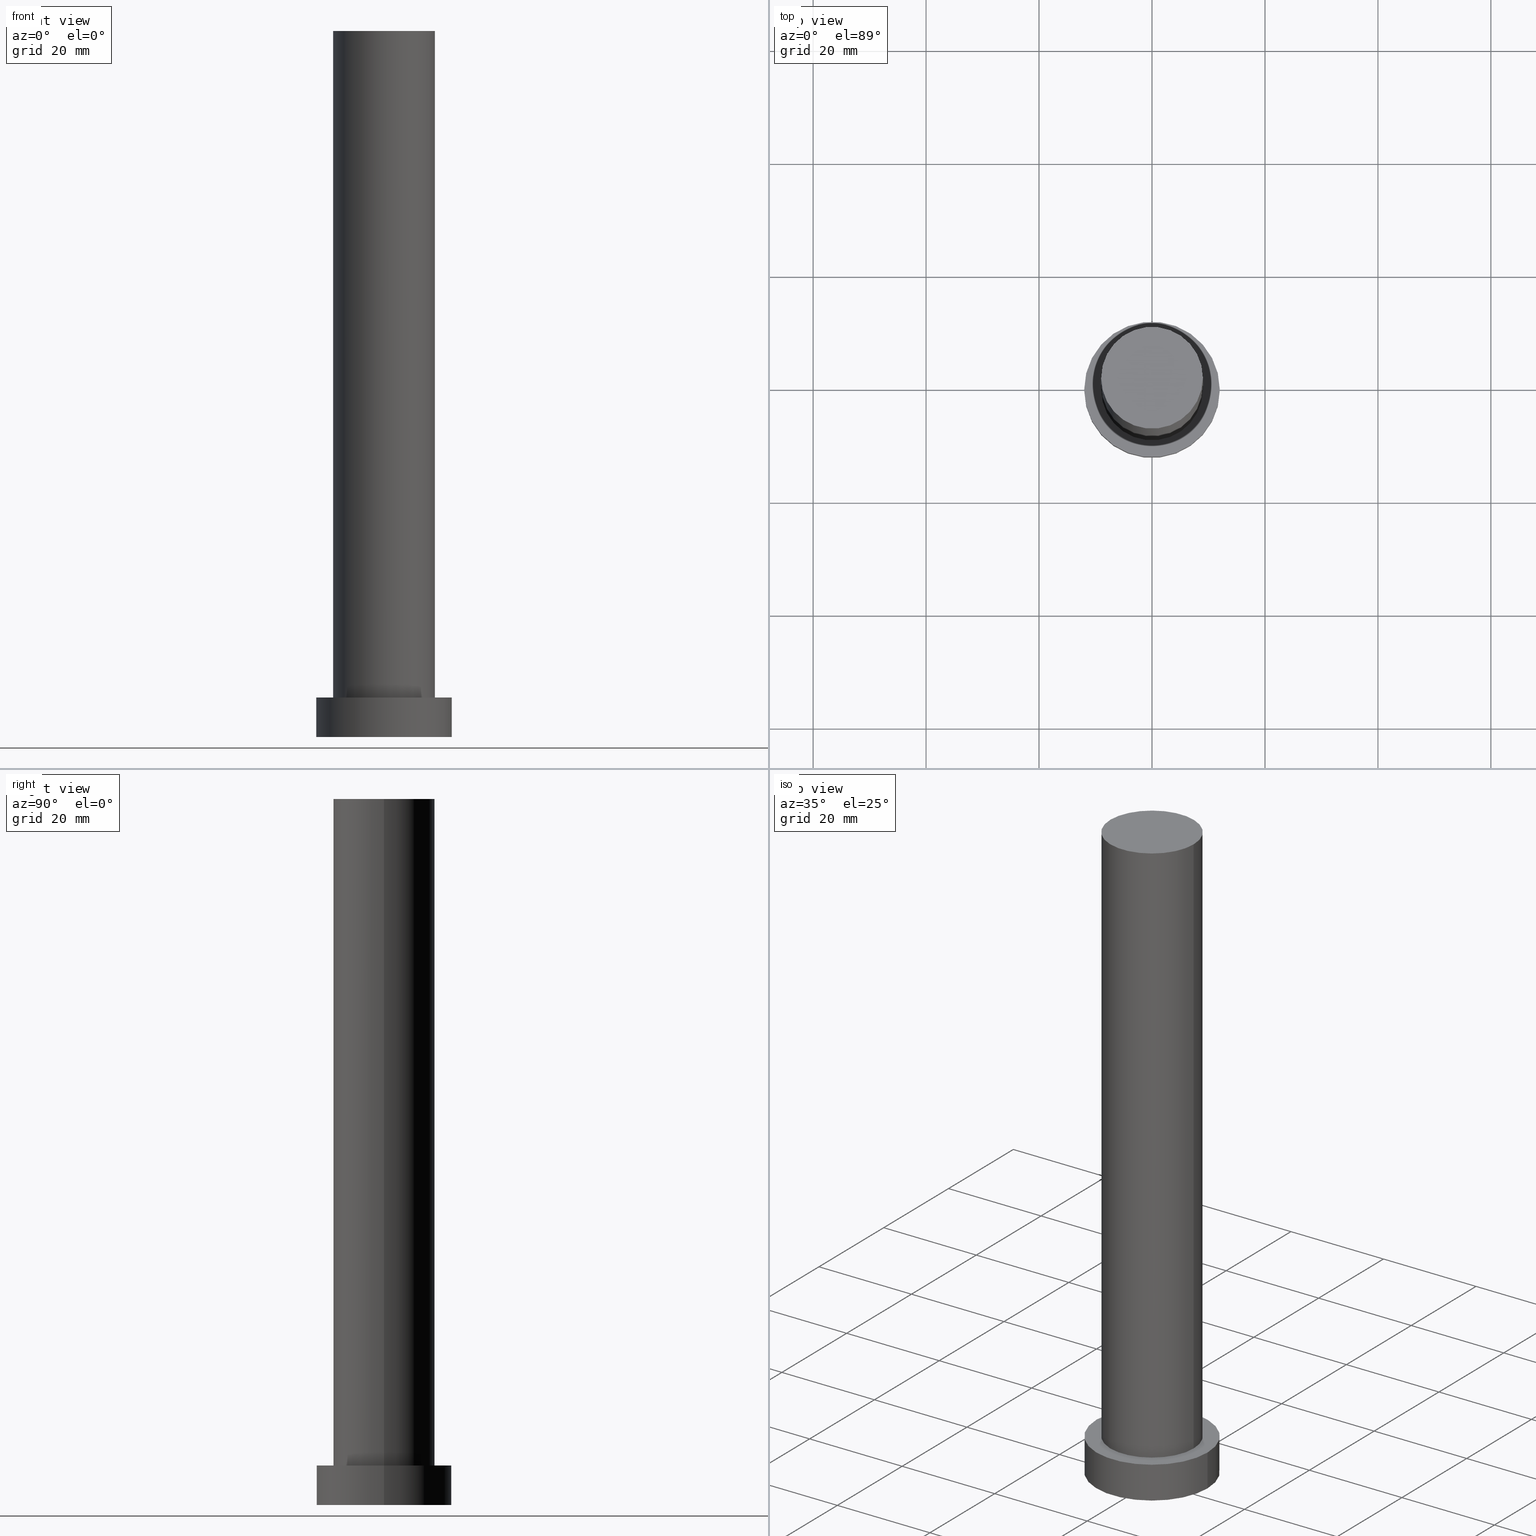
[diagram: canonical four-view strip — front | top / right | iso, engineering-drawing reading convention]
A machine part, canonical four-view strip (front | top / right | iso — engineering-drawing reading convention). The complete STEP part file that produces these views, byte-faithful:
ISO-10303-21;
HEADER;
FILE_DESCRIPTION (( 'STEP AP203' ),
    '1' );
FILE_NAME ('dd1f.STEP',
    '2023-02-13T09:19:42',
    ( '' ),
    ( '' ),
    'SwSTEP 2.0',
    'SolidWorks 2019',
    '' );
FILE_SCHEMA (( 'CONFIG_CONTROL_DESIGN' ));
ENDSEC;

DATA;
#1 = CARTESIAN_POINT ( 'NONE',  ( 0.000000000000000000, 0.000000000000000000, 125.0000000000000000 ) ) ;
#2 = EDGE_LOOP ( 'NONE', ( #228, #59 ) ) ;
#3 = CARTESIAN_POINT ( 'NONE',  ( 12.00000000000000178, 1.469576158976824144E-15, 7.000000000000000000 ) ) ;
#4 = DATE_AND_TIME ( #150, #138 ) ;
#5 = DIRECTION ( 'NONE',  ( 0.000000000000000000, 0.000000000000000000, 1.000000000000000000 ) ) ;
#6 = AXIS2_PLACEMENT_3D ( 'NONE', #202, #67, #137 ) ;
#7 = ADVANCED_FACE ( 'NONE', ( #255 ), #152, .T. ) ;
#8 = PERSON_AND_ORGANIZATION_ROLE ( 'creator' ) ;
#9 = EDGE_LOOP ( 'NONE', ( #215, #230, #41, #127 ) ) ;
#10 = CARTESIAN_POINT ( 'NONE',  ( 0.000000000000000000, 0.000000000000000000, 0.000000000000000000 ) ) ;
#11 = AXIS2_PLACEMENT_3D ( 'NONE', #115, #154, #50 ) ;
#12 = FACE_OUTER_BOUND ( 'NONE', #253, .T. ) ;
#13 = EDGE_CURVE ( 'NONE', #191, #162, #146, .T. ) ;
#14 = AXIS2_PLACEMENT_3D ( 'NONE', #224, #23, #70 ) ;
#15 = CC_DESIGN_APPROVAL ( #51, ( #143 ) ) ;
#16 = CLOSED_SHELL ( 'NONE', ( #106, #7, #155, #19, #62, #129, #189 ) ) ;
#17 = AXIS2_PLACEMENT_3D ( 'NONE', #227, #134, #183 ) ;
#18 = VERTEX_POINT ( 'NONE', #226 ) ;
#19 = ADVANCED_FACE ( 'NONE', ( #206, #111 ), #86, .T. ) ;
#20 = AXIS2_PLACEMENT_3D ( 'NONE', #88, #5, #172 ) ;
#21 = DIRECTION ( 'NONE',  ( 1.000000000000000000, 0.000000000000000000, 0.000000000000000000 ) ) ;
#22 = CARTESIAN_POINT ( 'NONE',  ( 9.000000000000000000, 1.102182119232617714E-15, 7.000000000000000000 ) ) ;
#23 = DIRECTION ( 'NONE',  ( 0.000000000000000000, 0.000000000000000000, 1.000000000000000000 ) ) ;
#24 = EDGE_CURVE ( 'NONE', #240, #232, #178, .T. ) ;
#25 = CARTESIAN_POINT ( 'NONE',  ( -9.000000000000000000, 0.000000000000000000, 125.0000000000000000 ) ) ;
#26 = PRODUCT_DEFINITION_SHAPE ( 'NONE', 'NONE',  #234 ) ;
#27 = CARTESIAN_POINT ( 'NONE',  ( 0.000000000000000000, 0.000000000000000000, 125.0000000000000000 ) ) ;
#28 = LINE ( 'NONE', #47, #36 ) ;
#29 = PERSON_AND_ORGANIZATION ( #176, #108 ) ;
#30 = DIRECTION ( 'NONE',  ( 1.000000000000000000, 0.000000000000000000, 0.000000000000000000 ) ) ;
#31 = DIRECTION ( 'NONE',  ( 1.000000000000000000, 0.000000000000000000, 0.000000000000000000 ) ) ;
#32 = EDGE_CURVE ( 'NONE', #39, #196, #103, .T. ) ;
#33 = CYLINDRICAL_SURFACE ( 'NONE', #185, 9.000000000000000000 ) ;
#34 =( NAMED_UNIT ( * ) PLANE_ANGLE_UNIT ( ) SI_UNIT ( $, .RADIAN. ) );
#35 = AXIS2_PLACEMENT_3D ( 'NONE', #208, #139, #30 ) ;
#36 = VECTOR ( 'NONE', #53, 1000.000000000000000 ) ;
#37 = ORIENTED_EDGE ( 'NONE', *, *, #173, .T. ) ;
#38 = ORIENTED_EDGE ( 'NONE', *, *, #72, .T. ) ;
#39 = VERTEX_POINT ( 'NONE', #187 ) ;
#40 = APPLICATION_CONTEXT ( 'configuration controlled 3d designs of mechanical parts and assemblies' ) ;
#41 = ORIENTED_EDGE ( 'NONE', *, *, #32, .T. ) ;
#42 = CC_DESIGN_APPROVAL ( #149, ( #130 ) ) ;
#43 = PERSON_AND_ORGANIZATION ( #176, #108 ) ;
#44 = APPROVAL_STATUS ( 'not_yet_approved' ) ;
#45 = LOCAL_TIME ( 10, 19, 42.00000000000000000, #49 ) ;
#46 = DIRECTION ( 'NONE',  ( 1.000000000000000000, 0.000000000000000000, 0.000000000000000000 ) ) ;
#47 = CARTESIAN_POINT ( 'NONE',  ( -12.00000000000000178, 0.000000000000000000, 7.000000000000000000 ) ) ;
#48 = CIRCLE ( 'NONE', #68, 9.000000000000000000 ) ;
#49 = COORDINATED_UNIVERSAL_TIME_OFFSET ( 1, 0, .AHEAD. ) ;
#50 = DIRECTION ( 'NONE',  ( 1.000000000000000000, 0.000000000000000000, 0.000000000000000000 ) ) ;
#51 = APPROVAL ( #114, 'NEUR�EN�' ) ;
#52 = DIRECTION ( 'NONE',  ( -0.000000000000000000, -0.000000000000000000, -1.000000000000000000 ) ) ;
#53 = DIRECTION ( 'NONE',  ( -0.000000000000000000, -0.000000000000000000, -1.000000000000000000 ) ) ;
#54 = PLANE ( 'NONE',  #170 ) ;
#55 = CALENDAR_DATE ( 2023, 13, 2 ) ;
#56 = LINE ( 'NONE', #221, #61 ) ;
#57 = CARTESIAN_POINT ( 'NONE',  ( -12.00000000000000178, 0.000000000000000000, 0.000000000000000000 ) ) ;
#58 = EDGE_CURVE ( 'NONE', #18, #191, #56, .T. ) ;
#59 = ORIENTED_EDGE ( 'NONE', *, *, #32, .F. ) ;
#60 = ORIENTED_EDGE ( 'NONE', *, *, #198, .T. ) ;
#61 = VECTOR ( 'NONE', #52, 1000.000000000000000 ) ;
#62 = ADVANCED_FACE ( 'NONE', ( #133 ), #54, .F. ) ;
#63 =( NAMED_UNIT ( * ) SI_UNIT ( $, .STERADIAN. ) SOLID_ANGLE_UNIT ( ) );
#64 = EDGE_CURVE ( 'NONE', #196, #39, #97, .T. ) ;
#65 = DATE_AND_TIME ( #237, #214 ) ;
#66 = ORIENTED_EDGE ( 'NONE', *, *, #198, .F. ) ;
#67 = DIRECTION ( 'NONE',  ( -0.000000000000000000, -0.000000000000000000, -1.000000000000000000 ) ) ;
#68 = AXIS2_PLACEMENT_3D ( 'NONE', #1, #169, #31 ) ;
#69 = SECURITY_CLASSIFICATION_LEVEL ( 'unclassified' ) ;
#70 = DIRECTION ( 'NONE',  ( 1.000000000000000000, 0.000000000000000000, 0.000000000000000000 ) ) ;
#71 = CARTESIAN_POINT ( 'NONE',  ( -9.000000000000000000, 0.000000000000000000, 7.000000000000000000 ) ) ;
#72 = EDGE_CURVE ( 'NONE', #242, #18, #197, .T. ) ;
#73 = DATE_TIME_ROLE ( 'creation_date' ) ;
#74 = CARTESIAN_POINT ( 'NONE',  ( 0.000000000000000000, 0.000000000000000000, 7.000000000000000000 ) ) ;
#75 = CARTESIAN_POINT ( 'NONE',  ( 0.000000000000000000, 0.000000000000000000, 7.000000000000000000 ) ) ;
#76 = CARTESIAN_POINT ( 'NONE',  ( 12.00000000000000178, 1.469576158976824144E-15, 7.000000000000000000 ) ) ;
#77 = ORIENTED_EDGE ( 'NONE', *, *, #109, .F. ) ;
#78 = APPROVAL ( #44, 'NEUR�EN�' ) ;
#79 = EDGE_CURVE ( 'NONE', #240, #39, #179, .T. ) ;
#80 = EDGE_LOOP ( 'NONE', ( #245, #165 ) ) ;
#81 = APPROVAL_PERSON_ORGANIZATION ( #84, #149, #87 ) ;
#82 = DIRECTION ( 'NONE',  ( 0.000000000000000000, 0.000000000000000000, 1.000000000000000000 ) ) ;
#83 = PERSON_AND_ORGANIZATION_ROLE ( 'design_owner' ) ;
#84 = PERSON_AND_ORGANIZATION ( #176, #108 ) ;
#85 = ORIENTED_EDGE ( 'NONE', *, *, #247, .T. ) ;
#86 = PLANE ( 'NONE',  #20 ) ;
#87 = APPROVAL_ROLE ( '' ) ;
#88 = CARTESIAN_POINT ( 'NONE',  ( 0.000000000000000000, 0.000000000000000000, 7.000000000000000000 ) ) ;
#89 = AXIS2_PLACEMENT_3D ( 'NONE', #27, #122, #161 ) ;
#90 = DIRECTION ( 'NONE',  ( 0.000000000000000000, 0.000000000000000000, 1.000000000000000000 ) ) ;
#91 = CC_DESIGN_SECURITY_CLASSIFICATION ( #130, ( #143 ) ) ;
#92 = PERSON_AND_ORGANIZATION ( #176, #108 ) ;
#93 = DIRECTION ( 'NONE',  ( 0.000000000000000000, 0.000000000000000000, 1.000000000000000000 ) ) ;
#94 = DIRECTION ( 'NONE',  ( 1.000000000000000000, 0.000000000000000000, 0.000000000000000000 ) ) ;
#95 = CC_DESIGN_DATE_AND_TIME_ASSIGNMENT ( #204, #110, ( #130 ) ) ;
#96 = CARTESIAN_POINT ( 'NONE',  ( 0.000000000000000000, 0.000000000000000000, 125.0000000000000000 ) ) ;
#97 = CIRCLE ( 'NONE', #35, 12.00000000000000178 ) ;
#98 = LINE ( 'NONE', #251, #128 ) ;
#99 = APPROVAL_PERSON_ORGANIZATION ( #92, #51, #118 ) ;
#100 = EDGE_LOOP ( 'NONE', ( #85, #243 ) ) ;
#101 = CC_DESIGN_PERSON_AND_ORGANIZATION_ASSIGNMENT ( #131, #239, ( #130 ) ) ;
#102 = EDGE_LOOP ( 'NONE', ( #38, #60 ) ) ;
#103 = CIRCLE ( 'NONE', #11, 12.00000000000000178 ) ;
#104 = LOCAL_TIME ( 10, 19, 42.00000000000000000, #171 ) ;
#105 = ORIENTED_EDGE ( 'NONE', *, *, #79, .F. ) ;
#106 = ADVANCED_FACE ( 'NONE', ( #12 ), #33, .T. ) ;
#107 = AXIS2_PLACEMENT_3D ( 'NONE', #220, #156, #158 ) ;
#108 = ORGANIZATION ( 'NEUR�EN�', 'NEUR�EN�', '' ) ;
#109 = EDGE_CURVE ( 'NONE', #242, #162, #98, .T. ) ;
#110 = DATE_TIME_ROLE ( 'classification_date' ) ;
#111 = FACE_OUTER_BOUND ( 'NONE', #100, .T. ) ;
#112 = CYLINDRICAL_SURFACE ( 'NONE', #17, 9.000000000000000000 ) ;
#113 = APPROVAL_STATUS ( 'not_yet_approved' ) ;
#114 = APPROVAL_STATUS ( 'not_yet_approved' ) ;
#115 = CARTESIAN_POINT ( 'NONE',  ( 0.000000000000000000, 0.000000000000000000, 0.000000000000000000 ) ) ;
#116 = DIRECTION ( 'NONE',  ( 1.000000000000000000, 0.000000000000000000, -0.000000000000000000 ) ) ;
#117 = EDGE_CURVE ( 'NONE', #162, #191, #250, .T. ) ;
#118 = APPROVAL_ROLE ( '' ) ;
#119 = DIRECTION ( 'NONE',  ( 0.000000000000000000, 0.000000000000000000, 1.000000000000000000 ) ) ;
#120 = PLANE ( 'NONE',  #147 ) ;
#121 = PERSON_AND_ORGANIZATION_ROLE ( 'design_supplier' ) ;
#122 = DIRECTION ( 'NONE',  ( 0.000000000000000000, 0.000000000000000000, 1.000000000000000000 ) ) ;
#123 = CARTESIAN_POINT ( 'NONE',  ( 0.000000000000000000, 0.000000000000000000, 7.000000000000000000 ) ) ;
#124 = DIRECTION ( 'NONE',  ( -1.000000000000000000, 0.000000000000000000, 0.000000000000000000 ) ) ;
#125 = UNCERTAINTY_MEASURE_WITH_UNIT (LENGTH_MEASURE( 1.000000000000000082E-05 ), #222, 'distance_accuracy_value', 'NONE');
#126 = AXIS2_PLACEMENT_3D ( 'NONE', #75, #159, #94 ) ;
#127 = ORIENTED_EDGE ( 'NONE', *, *, #173, .F. ) ;
#128 = VECTOR ( 'NONE', #235, 1000.000000000000000 ) ;
#129 = ADVANCED_FACE ( 'NONE', ( #207 ), #112, .T. ) ;
#130 = SECURITY_CLASSIFICATION ( '', '', #69 ) ;
#131 = PERSON_AND_ORGANIZATION ( #176, #108 ) ;
#132 = EDGE_LOOP ( 'NONE', ( #201, #184, #249, #177 ) ) ;
#133 = FACE_OUTER_BOUND ( 'NONE', #2, .T. ) ;
#134 = DIRECTION ( 'NONE',  ( -0.000000000000000000, -0.000000000000000000, -1.000000000000000000 ) ) ;
#135 = DATE_AND_TIME ( #200, #104 ) ;
#136 = DIRECTION ( 'NONE',  ( 1.000000000000000000, 0.000000000000000000, -0.000000000000000000 ) ) ;
#137 = DIRECTION ( 'NONE',  ( -1.000000000000000000, 0.000000000000000000, 0.000000000000000000 ) ) ;
#138 = LOCAL_TIME ( 10, 19, 42.00000000000000000, #241 ) ;
#139 = DIRECTION ( 'NONE',  ( 0.000000000000000000, 0.000000000000000000, 1.000000000000000000 ) ) ;
#140 = FACE_OUTER_BOUND ( 'NONE', #102, .T. ) ;
#141 = DESIGN_CONTEXT ( 'detailed design', #219, 'design' ) ;
#142 = CARTESIAN_POINT ( 'NONE',  ( 0.000000000000000000, 0.000000000000000000, 125.0000000000000000 ) ) ;
#143 = PRODUCT_DEFINITION_FORMATION_WITH_SPECIFIED_SOURCE ( 'LIBOVOLN�', '', #213, .NOT_KNOWN. ) ;
#144 = CC_DESIGN_PERSON_AND_ORGANIZATION_ASSIGNMENT ( #29, #121, ( #143 ) ) ;
#145 = ORIENTED_EDGE ( 'NONE', *, *, #247, .F. ) ;
#146 = CIRCLE ( 'NONE', #151, 9.000000000000000000 ) ;
#147 = AXIS2_PLACEMENT_3D ( 'NONE', #96, #205, #116 ) ;
#148 = MECHANICAL_CONTEXT ( 'NONE', #40, 'mechanical' ) ;
#149 = APPROVAL ( #113, 'NEUR�EN�' ) ;
#150 = CALENDAR_DATE ( 2023, 13, 2 ) ;
#151 = AXIS2_PLACEMENT_3D ( 'NONE', #74, #93, #21 ) ;
#152 = CYLINDRICAL_SURFACE ( 'NONE', #107, 12.00000000000000178 ) ;
#153 = PERSON_AND_ORGANIZATION ( #176, #108 ) ;
#154 = DIRECTION ( 'NONE',  ( 0.000000000000000000, 0.000000000000000000, 1.000000000000000000 ) ) ;
#155 = ADVANCED_FACE ( 'NONE', ( #244 ), #211, .T. ) ;
#156 = DIRECTION ( 'NONE',  ( -0.000000000000000000, -0.000000000000000000, -1.000000000000000000 ) ) ;
#157 = DATE_AND_TIME ( #55, #45 ) ;
#158 = DIRECTION ( 'NONE',  ( -1.000000000000000000, 0.000000000000000000, 0.000000000000000000 ) ) ;
#159 = DIRECTION ( 'NONE',  ( 0.000000000000000000, 0.000000000000000000, 1.000000000000000000 ) ) ;
#160 = APPROVAL_PERSON_ORGANIZATION ( #231, #78, #252 ) ;
#161 = DIRECTION ( 'NONE',  ( 1.000000000000000000, 0.000000000000000000, 0.000000000000000000 ) ) ;
#162 = VERTEX_POINT ( 'NONE', #71 ) ;
#163 = CC_DESIGN_PERSON_AND_ORGANIZATION_ASSIGNMENT ( #216, #195, ( #234 ) ) ;
#164 = CC_DESIGN_APPROVAL ( #78, ( #234 ) ) ;
#165 = ORIENTED_EDGE ( 'NONE', *, *, #13, .F. ) ;
#166 = VECTOR ( 'NONE', #229, 1000.000000000000000 ) ;
#167 = AXIS2_PLACEMENT_3D ( 'NONE', #123, #90, #188 ) ;
#168 = COORDINATED_UNIVERSAL_TIME_OFFSET ( 1, 0, .AHEAD. ) ;
#169 = DIRECTION ( 'NONE',  ( 0.000000000000000000, 0.000000000000000000, 1.000000000000000000 ) ) ;
#170 = AXIS2_PLACEMENT_3D ( 'NONE', #10, #119, #136 ) ;
#171 = COORDINATED_UNIVERSAL_TIME_OFFSET ( 1, 0, .AHEAD. ) ;
#172 = DIRECTION ( 'NONE',  ( 1.000000000000000000, 0.000000000000000000, -0.000000000000000000 ) ) ;
#173 = EDGE_CURVE ( 'NONE', #232, #196, #28, .T. ) ;
#174 = APPROVAL_DATE_TIME ( #4, #149 ) ;
#175 = ORIENTED_EDGE ( 'NONE', *, *, #13, .T. ) ;
#176 = PERSON ( 'NEUR�EN�', 'NEUR�EN�', 'NEUR�EN�', ('NEUR�EN�'), ('NEUR�EN�'), ('NEUR�EN�') ) ;
#177 = ORIENTED_EDGE ( 'NONE', *, *, #117, .T. ) ;
#178 = CIRCLE ( 'NONE', #14, 12.00000000000000178 ) ;
#179 = LINE ( 'NONE', #76, #166 ) ;
#180 =( GEOMETRIC_REPRESENTATION_CONTEXT ( 3 ) GLOBAL_UNCERTAINTY_ASSIGNED_CONTEXT ( ( #125 ) ) GLOBAL_UNIT_ASSIGNED_CONTEXT ( ( #222, #34, #63 ) ) REPRESENTATION_CONTEXT ( 'NONE', 'WORKASPACE' ) );
#181 = ORIENTED_EDGE ( 'NONE', *, *, #58, .T. ) ;
#182 = CC_DESIGN_PERSON_AND_ORGANIZATION_ASSIGNMENT ( #153, #8, ( #143 ) ) ;
#183 = DIRECTION ( 'NONE',  ( -1.000000000000000000, 0.000000000000000000, 0.000000000000000000 ) ) ;
#184 = ORIENTED_EDGE ( 'NONE', *, *, #72, .F. ) ;
#185 = AXIS2_PLACEMENT_3D ( 'NONE', #142, #212, #124 ) ;
#186 = COORDINATED_UNIVERSAL_TIME_OFFSET ( 1, 0, .AHEAD. ) ;
#187 = CARTESIAN_POINT ( 'NONE',  ( 12.00000000000000178, 1.469576158976824144E-15, 0.000000000000000000 ) ) ;
#188 = DIRECTION ( 'NONE',  ( 1.000000000000000000, 0.000000000000000000, 0.000000000000000000 ) ) ;
#189 = ADVANCED_FACE ( 'NONE', ( #140 ), #120, .T. ) ;
#190 = CALENDAR_DATE ( 2023, 13, 2 ) ;
#191 = VERTEX_POINT ( 'NONE', #22 ) ;
#192 = CARTESIAN_POINT ( 'NONE',  ( -12.00000000000000178, 0.000000000000000000, 7.000000000000000000 ) ) ;
#193 = LOCAL_TIME ( 10, 19, 42.00000000000000000, #186 ) ;
#194 = CARTESIAN_POINT ( 'NONE',  ( 0.000000000000000000, 0.000000000000000000, 0.000000000000000000 ) ) ;
#195 = PERSON_AND_ORGANIZATION_ROLE ( 'creator' ) ;
#196 = VERTEX_POINT ( 'NONE', #57 ) ;
#197 = CIRCLE ( 'NONE', #89, 9.000000000000000000 ) ;
#198 = EDGE_CURVE ( 'NONE', #18, #242, #48, .T. ) ;
#199 = ADVANCED_BREP_SHAPE_REPRESENTATION ( 'dd1f', ( #238, #236 ), #180 ) ;
#200 = CALENDAR_DATE ( 2023, 13, 2 ) ;
#201 = ORIENTED_EDGE ( 'NONE', *, *, #58, .F. ) ;
#202 = CARTESIAN_POINT ( 'NONE',  ( 0.000000000000000000, 0.000000000000000000, 7.000000000000000000 ) ) ;
#203 = PRODUCT_RELATED_PRODUCT_CATEGORY ( 'detail', '', ( #213 ) ) ;
#204 = DATE_AND_TIME ( #190, #193 ) ;
#205 = DIRECTION ( 'NONE',  ( 0.000000000000000000, 0.000000000000000000, 1.000000000000000000 ) ) ;
#206 = FACE_BOUND ( 'NONE', #80, .T. ) ;
#207 = FACE_OUTER_BOUND ( 'NONE', #132, .T. ) ;
#208 = CARTESIAN_POINT ( 'NONE',  ( 0.000000000000000000, 0.000000000000000000, 0.000000000000000000 ) ) ;
#209 = CC_DESIGN_DATE_AND_TIME_ASSIGNMENT ( #135, #73, ( #234 ) ) ;
#210 = EDGE_LOOP ( 'NONE', ( #105, #145, #37, #246 ) ) ;
#211 = CYLINDRICAL_SURFACE ( 'NONE', #6, 12.00000000000000178 ) ;
#212 = DIRECTION ( 'NONE',  ( -0.000000000000000000, -0.000000000000000000, -1.000000000000000000 ) ) ;
#213 = PRODUCT ( 'dd1f', 'dd1f', '', ( #148 ) ) ;
#214 = LOCAL_TIME ( 10, 19, 42.00000000000000000, #168 ) ;
#215 = ORIENTED_EDGE ( 'NONE', *, *, #24, .F. ) ;
#216 = PERSON_AND_ORGANIZATION ( #176, #108 ) ;
#217 = APPLICATION_PROTOCOL_DEFINITION ( 'international standard', 'config_control_design', 1994, #219 ) ;
#218 = APPROVAL_DATE_TIME ( #65, #78 ) ;
#219 = APPLICATION_CONTEXT ( 'configuration controlled 3d designs of mechanical parts and assemblies' ) ;
#220 = CARTESIAN_POINT ( 'NONE',  ( 0.000000000000000000, 0.000000000000000000, 7.000000000000000000 ) ) ;
#221 = CARTESIAN_POINT ( 'NONE',  ( 9.000000000000000000, 1.102182119232617714E-15, 125.0000000000000000 ) ) ;
#222 =( LENGTH_UNIT ( ) NAMED_UNIT ( * ) SI_UNIT ( .MILLI., .METRE. ) );
#223 = CC_DESIGN_PERSON_AND_ORGANIZATION_ASSIGNMENT ( #43, #83, ( #213 ) ) ;
#224 = CARTESIAN_POINT ( 'NONE',  ( 0.000000000000000000, 0.000000000000000000, 7.000000000000000000 ) ) ;
#225 = APPROVAL_DATE_TIME ( #157, #51 ) ;
#226 = CARTESIAN_POINT ( 'NONE',  ( 9.000000000000000000, 1.102182119232617714E-15, 125.0000000000000000 ) ) ;
#227 = CARTESIAN_POINT ( 'NONE',  ( 0.000000000000000000, 0.000000000000000000, 125.0000000000000000 ) ) ;
#228 = ORIENTED_EDGE ( 'NONE', *, *, #64, .F. ) ;
#229 = DIRECTION ( 'NONE',  ( -0.000000000000000000, -0.000000000000000000, -1.000000000000000000 ) ) ;
#230 = ORIENTED_EDGE ( 'NONE', *, *, #79, .T. ) ;
#231 = PERSON_AND_ORGANIZATION ( #176, #108 ) ;
#232 = VERTEX_POINT ( 'NONE', #192 ) ;
#233 = CIRCLE ( 'NONE', #167, 12.00000000000000178 ) ;
#234 = PRODUCT_DEFINITION ( 'NEZN�M�', '', #143, #141 ) ;
#235 = DIRECTION ( 'NONE',  ( -0.000000000000000000, -0.000000000000000000, -1.000000000000000000 ) ) ;
#236 = AXIS2_PLACEMENT_3D ( 'NONE', #194, #82, #46 ) ;
#237 = CALENDAR_DATE ( 2023, 13, 2 ) ;
#238 = MANIFOLD_SOLID_BREP ( 'P�idat vysunut�m3', #16 ) ;
#239 = PERSON_AND_ORGANIZATION_ROLE ( 'classification_officer' ) ;
#240 = VERTEX_POINT ( 'NONE', #3 ) ;
#241 = COORDINATED_UNIVERSAL_TIME_OFFSET ( 1, 0, .AHEAD. ) ;
#242 = VERTEX_POINT ( 'NONE', #25 ) ;
#243 = ORIENTED_EDGE ( 'NONE', *, *, #24, .T. ) ;
#244 = FACE_OUTER_BOUND ( 'NONE', #210, .T. ) ;
#245 = ORIENTED_EDGE ( 'NONE', *, *, #117, .F. ) ;
#246 = ORIENTED_EDGE ( 'NONE', *, *, #64, .T. ) ;
#247 = EDGE_CURVE ( 'NONE', #232, #240, #233, .T. ) ;
#248 = APPLICATION_PROTOCOL_DEFINITION ( 'international standard', 'config_control_design', 1994, #40 ) ;
#249 = ORIENTED_EDGE ( 'NONE', *, *, #109, .T. ) ;
#250 = CIRCLE ( 'NONE', #126, 9.000000000000000000 ) ;
#251 = CARTESIAN_POINT ( 'NONE',  ( -9.000000000000000000, 0.000000000000000000, 125.0000000000000000 ) ) ;
#252 = APPROVAL_ROLE ( '' ) ;
#253 = EDGE_LOOP ( 'NONE', ( #66, #181, #175, #77 ) ) ;
#254 = SHAPE_DEFINITION_REPRESENTATION ( #26, #199 ) ;
#255 = FACE_OUTER_BOUND ( 'NONE', #9, .T. ) ;
ENDSEC;
END-ISO-10303-21;
